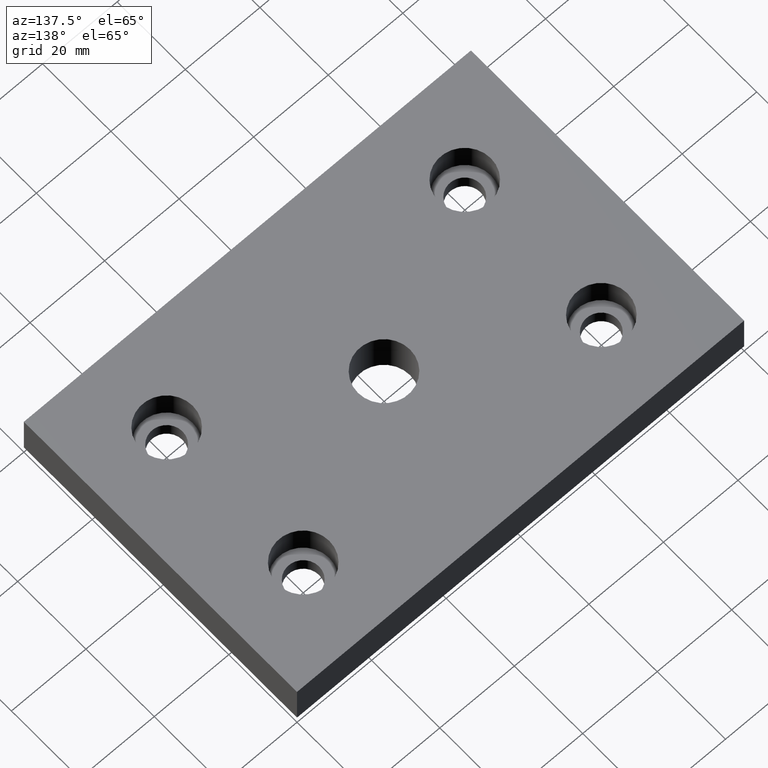
[diagram: clean part render]
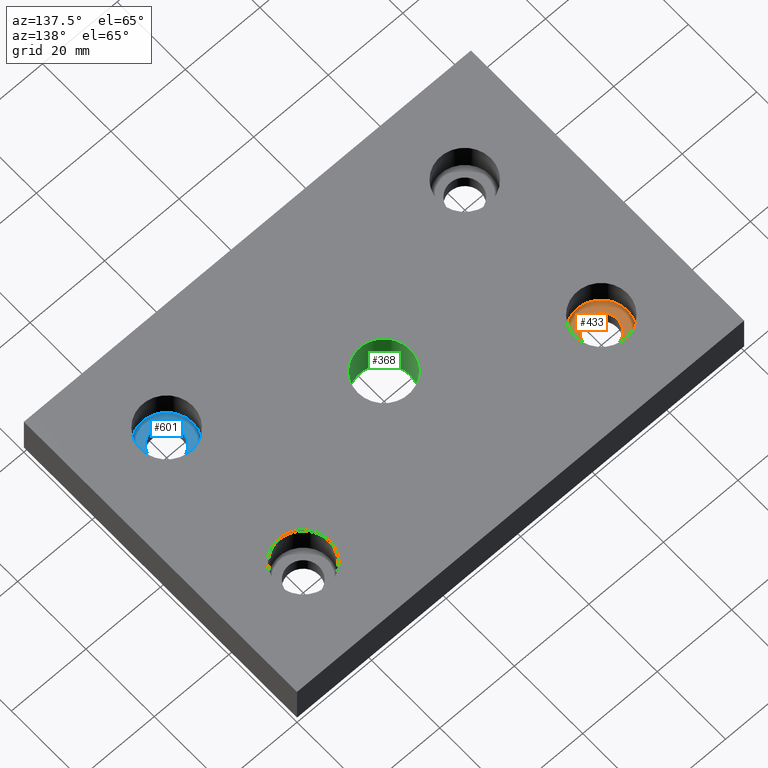
[diagram: same view with three faces highlighted in distinct colors, each labeled with its STEP entity id]
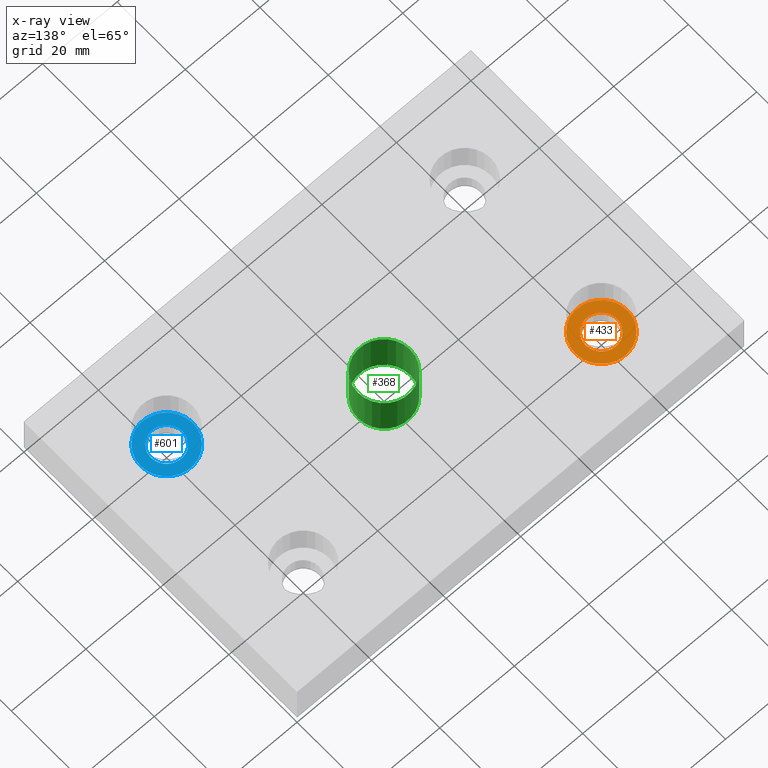
[diagram: x-ray of the same camera — body ghosted, the three highlighted faces saturated]
A machine part, auxiliary view with three faces highlighted in distinct colors.
The next image is the same camera in x-ray (body ghosted, the three faces saturated) — at least one of them is partly hidden behind the body in this view.
Their STEP definitions:

[orange] entity #433 — the highlighted planar face has unit normal (0, 0, -1).
#374=CARTESIAN_POINT('',(-35.749991119840161,19.999995559920080,3.999999999999998));
#375=VERTEX_POINT('',#374);
#385=CARTESIAN_POINT('',(-44.249991119840161,19.999995559920080,4.000000000000000));
#386=VERTEX_POINT('',#385);
#387=CARTESIAN_POINT('',(-39.999991119840161,19.999995559920080,4.000000000000000));
#388=DIRECTION('',(0.0,6.123234E-017,1.0));
#389=DIRECTION('',(1.0,0.0,0.0));
#390=AXIS2_PLACEMENT_3D('',#387,#388,#389);
#391=CIRCLE('',#390,4.250000000000000);
#392=EDGE_CURVE('',#375,#386,#391,.T.);
#394=CARTESIAN_POINT('',(-39.999991119840161,19.999995559920080,4.000000000000000));
#395=DIRECTION('',(0.0,6.123234E-017,1.0));
#396=DIRECTION('',(1.0,0.0,0.0));
#397=AXIS2_PLACEMENT_3D('',#394,#395,#396);
#398=CIRCLE('',#397,4.250000000000000);
#399=EDGE_CURVE('',#386,#375,#398,.T.);
#404=CARTESIAN_POINT('',(-53.999991119840161,5.999995559920080,4.000000000000001));
#405=DIRECTION('',(0.0,0.0,-1.0));
#406=DIRECTION('',(0.0,1.0,0.0));
#407=AXIS2_PLACEMENT_3D('',#404,#405,#406);
#408=PLANE('',#407);
#409=CARTESIAN_POINT('',(-32.999991119840161,19.999995559920080,4.0));
#410=VERTEX_POINT('',#409);
#411=CARTESIAN_POINT('',(-46.999991119840161,19.999995559920080,4.000000000000000));
#412=VERTEX_POINT('',#411);
#413=CARTESIAN_POINT('',(-39.999991119840161,19.999995559920080,4.000000000000000));
#414=DIRECTION('',(0.0,6.123234E-017,1.0));
#415=DIRECTION('',(1.0,0.0,0.0));
#416=AXIS2_PLACEMENT_3D('',#413,#414,#415);
#417=CIRCLE('',#416,7.0);
#418=EDGE_CURVE('',#410,#412,#417,.T.);
#419=ORIENTED_EDGE('',*,*,#418,.T.);
#420=CARTESIAN_POINT('',(-39.999991119840161,19.999995559920080,4.000000000000000));
#421=DIRECTION('',(0.0,6.123234E-017,1.0));
#422=DIRECTION('',(1.0,0.0,0.0));
#423=AXIS2_PLACEMENT_3D('',#420,#421,#422);
#424=CIRCLE('',#423,7.0);
#425=EDGE_CURVE('',#412,#410,#424,.T.);
#426=ORIENTED_EDGE('',*,*,#425,.T.);
#427=EDGE_LOOP('',(#419,#426));
#428=FACE_OUTER_BOUND('',#427,.T.);
#429=ORIENTED_EDGE('',*,*,#399,.F.);
#430=ORIENTED_EDGE('',*,*,#392,.F.);
#431=EDGE_LOOP('',(#429,#430));
#432=FACE_BOUND('',#431,.T.);
#433=ADVANCED_FACE('',(#428,#432),#408,.F.);

[blue] entity #601 — the highlighted planar face has unit normal (0, 0, -1).
#542=CARTESIAN_POINT('',(44.249991119839933,-19.999995559919626,3.999999999999998));
#543=VERTEX_POINT('',#542);
#553=CARTESIAN_POINT('',(35.749991119839933,-19.999995559919626,4.0));
#554=VERTEX_POINT('',#553);
#555=CARTESIAN_POINT('',(39.999991119839933,-19.999995559919626,4.0));
#556=DIRECTION('',(0.0,6.123234E-017,1.0));
#557=DIRECTION('',(1.0,0.0,0.0));
#558=AXIS2_PLACEMENT_3D('',#555,#556,#557);
#559=CIRCLE('',#558,4.250000000000000);
#560=EDGE_CURVE('',#543,#554,#559,.T.);
#562=CARTESIAN_POINT('',(39.999991119839933,-19.999995559919626,4.0));
#563=DIRECTION('',(0.0,6.123234E-017,1.0));
#564=DIRECTION('',(1.0,0.0,0.0));
#565=AXIS2_PLACEMENT_3D('',#562,#563,#564);
#566=CIRCLE('',#565,4.250000000000000);
#567=EDGE_CURVE('',#554,#543,#566,.T.);
#572=CARTESIAN_POINT('',(25.999991119839933,-33.999995559919626,4.000000000000001));
#573=DIRECTION('',(0.0,0.0,-1.0));
#574=DIRECTION('',(0.0,1.0,0.0));
#575=AXIS2_PLACEMENT_3D('',#572,#573,#574);
#576=PLANE('',#575);
#577=CARTESIAN_POINT('',(46.999991119839933,-19.999995559919626,4.0));
#578=VERTEX_POINT('',#577);
#579=CARTESIAN_POINT('',(32.999991119839933,-19.999995559919626,4.0));
#580=VERTEX_POINT('',#579);
#581=CARTESIAN_POINT('',(39.999991119839933,-19.999995559919626,4.0));
#582=DIRECTION('',(0.0,6.123234E-017,1.0));
#583=DIRECTION('',(1.0,0.0,0.0));
#584=AXIS2_PLACEMENT_3D('',#581,#582,#583);
#585=CIRCLE('',#584,7.0);
#586=EDGE_CURVE('',#578,#580,#585,.T.);
#587=ORIENTED_EDGE('',*,*,#586,.T.);
#588=CARTESIAN_POINT('',(39.999991119839933,-19.999995559919626,4.0));
#589=DIRECTION('',(0.0,6.123234E-017,1.0));
#590=DIRECTION('',(1.0,0.0,0.0));
#591=AXIS2_PLACEMENT_3D('',#588,#589,#590);
#592=CIRCLE('',#591,7.0);
#593=EDGE_CURVE('',#580,#578,#592,.T.);
#594=ORIENTED_EDGE('',*,*,#593,.T.);
#595=EDGE_LOOP('',(#587,#594));
#596=FACE_OUTER_BOUND('',#595,.T.);
#597=ORIENTED_EDGE('',*,*,#567,.F.);
#598=ORIENTED_EDGE('',*,*,#560,.F.);
#599=EDGE_LOOP('',(#597,#598));
#600=FACE_BOUND('',#599,.T.);
#601=ADVANCED_FACE('',(#596,#600),#576,.F.);

[green] entity #368 — the highlighted cylindrical surface (bore or boss wall) has radius 7 mm, axis along (0, 0, 1).
#137=CARTESIAN_POINT('',(-7.0,0.0,12.0));
#138=VERTEX_POINT('',#137);
#139=CARTESIAN_POINT('',(7.0,0.0,12.0));
#140=VERTEX_POINT('',#139);
#141=CARTESIAN_POINT('',(0.0,0.0,12.0));
#142=DIRECTION('',(0.0,0.0,1.0));
#143=DIRECTION('',(1.0,0.0,0.0));
#144=AXIS2_PLACEMENT_3D('',#141,#142,#143);
#145=CIRCLE('',#144,7.0);
#146=EDGE_CURVE('',#138,#140,#145,.T.);
#148=CARTESIAN_POINT('',(0.0,0.0,12.0));
#149=DIRECTION('',(0.0,0.0,1.0));
#150=DIRECTION('',(1.0,0.0,0.0));
#151=AXIS2_PLACEMENT_3D('',#148,#149,#150);
#152=CIRCLE('',#151,7.0);
#153=EDGE_CURVE('',#140,#138,#152,.T.);
#249=CARTESIAN_POINT('',(-7.0,0.0,0.0));
#250=VERTEX_POINT('',#249);
#251=CARTESIAN_POINT('',(7.0,0.0,0.0));
#252=VERTEX_POINT('',#251);
#253=CARTESIAN_POINT('',(0.0,0.0,0.0));
#254=DIRECTION('',(0.0,0.0,-1.0));
#255=DIRECTION('',(1.0,0.0,0.0));
#256=AXIS2_PLACEMENT_3D('',#253,#254,#255);
#257=CIRCLE('',#256,7.0);
#258=EDGE_CURVE('',#250,#252,#257,.T.);
#260=CARTESIAN_POINT('',(0.0,0.0,0.0));
#261=DIRECTION('',(0.0,0.0,-1.0));
#262=DIRECTION('',(1.0,0.0,0.0));
#263=AXIS2_PLACEMENT_3D('',#260,#261,#262);
#264=CIRCLE('',#263,7.0);
#265=EDGE_CURVE('',#252,#250,#264,.T.);
#350=CARTESIAN_POINT('',(0.0,0.0,12.0));
#351=DIRECTION('',(0.0,0.0,1.0));
#352=DIRECTION('',(1.0,0.0,0.0));
#353=AXIS2_PLACEMENT_3D('',#350,#351,#352);
#354=CYLINDRICAL_SURFACE('',#353,7.0);
#355=CARTESIAN_POINT('',(7.0,0.0,12.0));
#356=DIRECTION('',(0.0,0.0,-1.0));
#357=VECTOR('',#356,12.0);
#358=LINE('',#355,#357);
#359=EDGE_CURVE('',#140,#252,#358,.T.);
#360=ORIENTED_EDGE('',*,*,#359,.T.);
#361=ORIENTED_EDGE('',*,*,#265,.T.);
#362=ORIENTED_EDGE('',*,*,#258,.T.);
#363=ORIENTED_EDGE('',*,*,#359,.F.);
#364=ORIENTED_EDGE('',*,*,#153,.T.);
#365=ORIENTED_EDGE('',*,*,#146,.T.);
#366=EDGE_LOOP('',(#360,#361,#362,#363,#364,#365));
#367=FACE_OUTER_BOUND('',#366,.T.);
#368=ADVANCED_FACE('',(#367),#354,.F.);